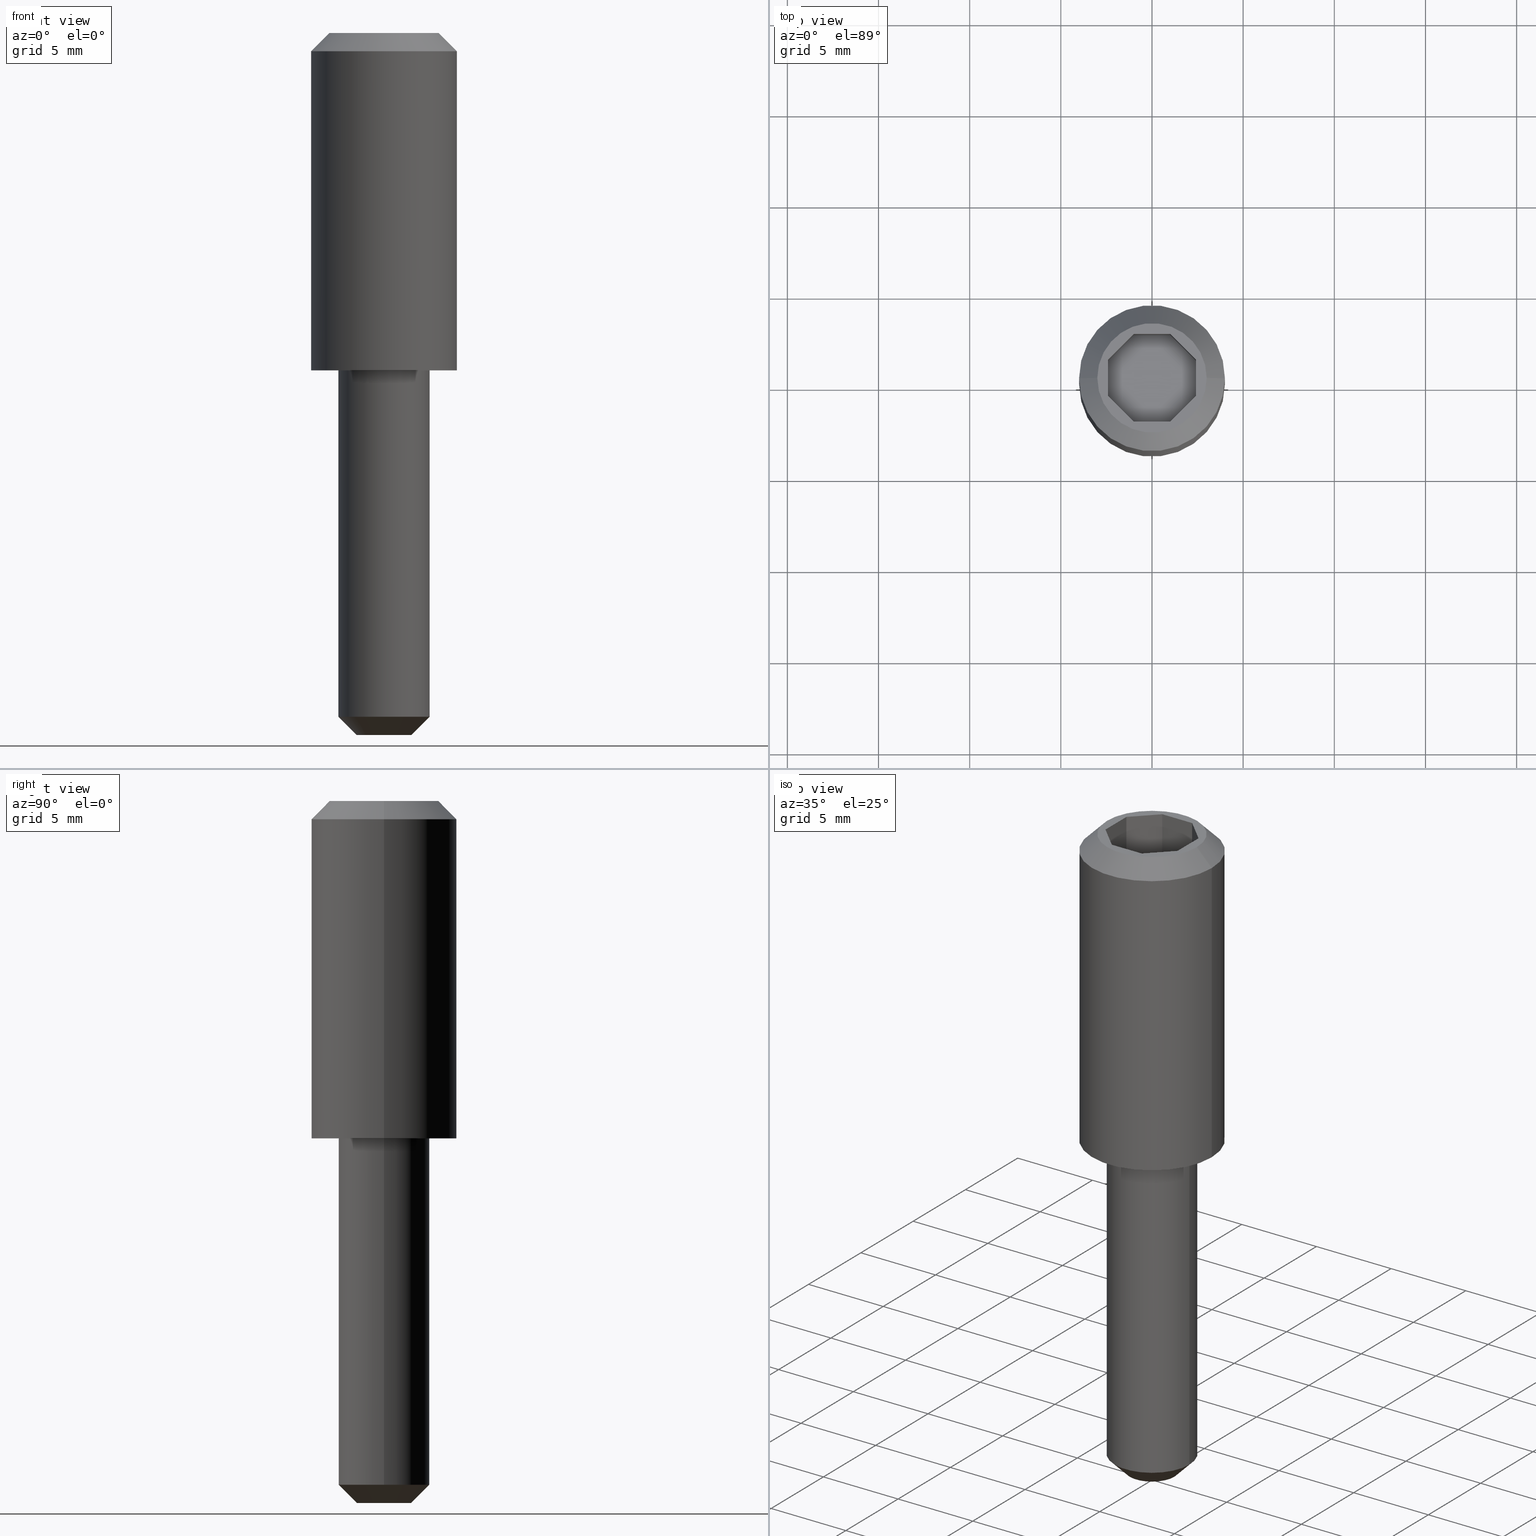
[diagram: canonical four-view strip — front | top / right | iso, engineering-drawing reading convention]
A machine part, canonical four-view strip (front | top / right | iso — engineering-drawing reading convention). The complete STEP part file that produces these views, byte-faithful:
ISO-10303-21;
HEADER;
/****************************************************************
 * Generated by software with PDE/Lib inside                    *
 * PDElib Version v4.4, created Mon 02/23/2004                  *
 * International Technegroup Inc. (www.iti-oh.com)              *
 ****************************************************************/
FILE_DESCRIPTION(('STEP AP203'),'2;1');
FILE_NAME('25.167.00.stp','2011-02-14T10:02:46',(''),(''),'2009.3.110','THINKDESIGN','');
FILE_SCHEMA(('CONFIG_CONTROL_DESIGN'));
ENDSEC;
DATA;
#2=CARTESIAN_POINT('',(0.0,-2.632991E-015,-21.500000000000007));
#3=CARTESIAN_POINT('',(0.0,-2.632991E-015,-21.500000000000007));
#4=CARTESIAN_POINT('',(0.0,-2.632991E-015,-21.500000000000007));
#5=CARTESIAN_POINT('',(0.0,-2.632991E-015,-21.500000000000007));
#6=CARTESIAN_POINT('',(0.0,-2.632991E-015,-21.500000000000007));
#7=CARTESIAN_POINT('',(0.0,-2.632991E-015,-21.500000000000007));
#8=CARTESIAN_POINT('',(0.0,-2.632991E-015,-21.500000000000007));
#9=CARTESIAN_POINT('',(0.0,-2.632991E-015,-21.500000000000007));
#10=CARTESIAN_POINT('',(0.0,-2.632991E-015,-21.500000000000007));
#11=CARTESIAN_POINT('',(0.0,2.625000000000001,-18.875000000000000));
#12=CARTESIAN_POINT('',(-2.625000000000000,2.625000000000001,-18.875000000000000));
#13=CARTESIAN_POINT('',(-2.625000000000000,-2.311521E-015,-18.875000000000000));
#14=CARTESIAN_POINT('',(-2.625000000000000,-2.625000000000006,-18.875000000000000));
#15=CARTESIAN_POINT('',(0.0,-2.625000000000006,-18.875000000000000));
#16=CARTESIAN_POINT('',(2.625000000000000,-2.625000000000006,-18.875000000000000));
#17=CARTESIAN_POINT('',(2.625000000000000,-2.311521E-015,-18.875000000000000));
#18=CARTESIAN_POINT('',(2.625000000000000,2.625000000000001,-18.875000000000000));
#19=CARTESIAN_POINT('',(0.0,2.625000000000001,-18.875000000000000));
#27=(BOUNDED_SURFACE()B_SPLINE_SURFACE(2,1,((#2,#11),(#3,#12),(#4,#13),(#5,#14),(#6,#15),(#7,#16),(#8,#17),(#9,#18),(#10,#19)),.UNSPECIFIED.,.T.,.F.,.U.)B_SPLINE_SURFACE_WITH_KNOTS((3,2,2,2,3),(2,2),(0.0,0.250000000000000,0.500000000000000,0.750000000000000,1.0),(0.0,1.0),.UNSPECIFIED.)GEOMETRIC_REPRESENTATION_ITEM()RATIONAL_B_SPLINE_SURFACE(((1.0,1.0),(0.707106781186548,0.707106781186548),(1.0,1.0),(0.707106781186548,0.707106781186548),(1.0,1.0),(0.707106781186548,0.707106781186548),(1.0,1.0),(0.707106781186548,0.707106781186548),(1.0,1.0)))REPRESENTATION_ITEM('')SURFACE());
#28=CARTESIAN_POINT('',(1.500000000000000,-2.449294E-015,-20.0));
#29=VERTEX_POINT('',#28);
#30=CARTESIAN_POINT('',(-1.500000000000000,-2.449294E-015,-20.0));
#31=VERTEX_POINT('',#30);
#32=CARTESIAN_POINT('',(0.0,-2.449294E-015,-20.0));
#33=DIRECTION('',(0.0,-1.224647E-016,-1.0));
#34=DIRECTION('',(-1.0,0.0,0.0));
#35=AXIS2_PLACEMENT_3D('',#32,#33,#34);
#36=CIRCLE('',#35,1.500000000000001);
#37=EDGE_CURVE('',#29,#31,#36,.T.);
#38=ORIENTED_EDGE('',*,*,#37,.F.);
#39=CARTESIAN_POINT('',(2.500000000000000,-2.326829E-015,-19.0));
#40=VERTEX_POINT('',#39);
#41=CARTESIAN_POINT('',(1.500000000000000,-2.449294E-015,-20.0));
#42=DIRECTION('',(0.707106781186547,8.659561E-017,0.707106781186547));
#43=VECTOR('',#42,1.414213562373095);
#44=LINE('',#41,#43);
#45=EDGE_CURVE('',#29,#40,#44,.T.);
#46=ORIENTED_EDGE('',*,*,#45,.T.);
#47=CARTESIAN_POINT('',(-2.500000000000000,-2.326829E-015,-19.0));
#48=VERTEX_POINT('',#47);
#49=CARTESIAN_POINT('',(0.0,-2.326829E-015,-19.0));
#50=DIRECTION('',(0.0,1.224647E-016,1.0));
#51=DIRECTION('',(-1.0,0.0,0.0));
#52=AXIS2_PLACEMENT_3D('',#49,#50,#51);
#53=CIRCLE('',#52,2.500000000000003);
#54=EDGE_CURVE('',#48,#40,#53,.T.);
#55=ORIENTED_EDGE('',*,*,#54,.F.);
#56=CARTESIAN_POINT('',(-1.500000000000000,-2.449294E-015,-20.0));
#57=DIRECTION('',(-0.707106781186547,8.659561E-017,0.707106781186547));
#58=VECTOR('',#57,1.414213562373095);
#59=LINE('',#56,#58);
#60=EDGE_CURVE('',#31,#48,#59,.T.);
#61=ORIENTED_EDGE('',*,*,#60,.F.);
#62=EDGE_LOOP('',(#38,#46,#55,#61));
#63=FACE_OUTER_BOUND('',#62,.T.);
#64=ADVANCED_FACE('',(#63),#27,.T.);
#65=CARTESIAN_POINT('',(0.0,2.632991E-015,21.500000000000014));
#66=CARTESIAN_POINT('',(0.0,2.632991E-015,21.500000000000014));
#67=CARTESIAN_POINT('',(0.0,2.632991E-015,21.500000000000014));
#68=CARTESIAN_POINT('',(0.0,2.632991E-015,21.500000000000014));
#69=CARTESIAN_POINT('',(0.0,2.632991E-015,21.500000000000014));
#70=CARTESIAN_POINT('',(0.0,2.632991E-015,21.500000000000014));
#71=CARTESIAN_POINT('',(0.0,2.632991E-015,21.500000000000014));
#72=CARTESIAN_POINT('',(0.0,2.632991E-015,21.500000000000014));
#73=CARTESIAN_POINT('',(0.0,2.632991E-015,21.500000000000014));
#74=CARTESIAN_POINT('',(0.0,4.200000000000019,17.299999999999983));
#75=CARTESIAN_POINT('',(4.200000000000017,4.200000000000019,17.299999999999983));
#76=CARTESIAN_POINT('',(4.200000000000017,2.118639E-015,17.299999999999983));
#77=CARTESIAN_POINT('',(4.200000000000017,-4.200000000000015,17.299999999999983));
#78=CARTESIAN_POINT('',(0.0,-4.200000000000015,17.299999999999983));
#79=CARTESIAN_POINT('',(-4.200000000000024,-4.200000000000015,17.299999999999983));
#80=CARTESIAN_POINT('',(-4.200000000000017,2.118639E-015,17.299999999999983));
#81=CARTESIAN_POINT('',(-4.200000000000024,4.200000000000019,17.299999999999983));
#82=CARTESIAN_POINT('',(0.0,4.200000000000019,17.299999999999983));
#90=(BOUNDED_SURFACE()B_SPLINE_SURFACE(2,1,((#65,#74),(#66,#75),(#67,#76),(#68,#77),(#69,#78),(#70,#79),(#71,#80),(#72,#81),(#73,#82)),.UNSPECIFIED.,.T.,.F.,.U.)B_SPLINE_SURFACE_WITH_KNOTS((3,2,2,2,3),(2,2),(0.0,0.250000000000000,0.500000000000000,0.750000000000000,1.0),(0.0,1.0),.UNSPECIFIED.)GEOMETRIC_REPRESENTATION_ITEM()RATIONAL_B_SPLINE_SURFACE(((1.0,1.0),(0.707106781186548,0.707106781186548),(1.0,1.0),(0.707106781186548,0.707106781186548),(1.0,1.0),(0.707106781186548,0.707106781186548),(1.0,1.0),(0.707106781186548,0.707106781186548),(1.0,1.0)))REPRESENTATION_ITEM('')SURFACE());
#91=CARTESIAN_POINT('',(-3.000000000000007,2.265597E-015,18.500000000000000));
#92=VERTEX_POINT('',#91);
#93=CARTESIAN_POINT('',(3.0,2.265597E-015,18.500000000000000));
#94=VERTEX_POINT('',#93);
#95=CARTESIAN_POINT('',(0.0,2.265597E-015,18.500000000000000));
#96=DIRECTION('',(0.0,1.224647E-016,1.0));
#97=DIRECTION('',(-1.0,0.0,0.0));
#98=AXIS2_PLACEMENT_3D('',#95,#96,#97);
#99=CIRCLE('',#98,3.000000000000002);
#100=EDGE_CURVE('',#92,#94,#99,.T.);
#101=ORIENTED_EDGE('',*,*,#100,.F.);
#102=CARTESIAN_POINT('',(-4.000000000000007,2.143132E-015,17.500000000000000));
#103=VERTEX_POINT('',#102);
#104=CARTESIAN_POINT('',(-3.000000000000007,2.265597E-015,18.500000000000000));
#105=DIRECTION('',(-0.707106781186546,-8.659561E-017,-0.707106781186549));
#106=VECTOR('',#105,1.414213562373098);
#107=LINE('',#104,#106);
#108=EDGE_CURVE('',#92,#103,#107,.T.);
#109=ORIENTED_EDGE('',*,*,#108,.T.);
#110=CARTESIAN_POINT('',(4.000000000000028,2.143132E-015,17.500000000000000));
#111=VERTEX_POINT('',#110);
#112=CARTESIAN_POINT('',(0.0,2.143132E-015,17.500000000000000));
#113=DIRECTION('',(0.0,-1.224647E-016,-1.0));
#114=DIRECTION('',(-1.0,0.0,0.0));
#115=AXIS2_PLACEMENT_3D('',#112,#113,#114);
#116=CIRCLE('',#115,4.000000000000004);
#117=EDGE_CURVE('',#111,#103,#116,.T.);
#118=ORIENTED_EDGE('',*,*,#117,.F.);
#119=CARTESIAN_POINT('',(3.0,2.265597E-015,18.500000000000000));
#120=DIRECTION('',(0.707106781186546,-8.659561E-017,-0.707106781186549));
#121=VECTOR('',#120,1.414213562373118);
#122=LINE('',#119,#121);
#123=EDGE_CURVE('',#94,#111,#122,.T.);
#124=ORIENTED_EDGE('',*,*,#123,.F.);
#125=EDGE_LOOP('',(#101,#109,#118,#124));
#126=FACE_OUTER_BOUND('',#125,.T.);
#127=ADVANCED_FACE('',(#126),#90,.T.);
#128=CARTESIAN_POINT('',(0.0,-2.326829E-015,-19.000000010000001));
#129=DIRECTION('',(0.0,1.224647E-016,1.0));
#130=DIRECTION('',(0.0,1.0,-1.224647E-016));
#131=AXIS2_PLACEMENT_3D('',#128,#129,#130);
#132=CYLINDRICAL_SURFACE('',#131,2.500000000000003);
#133=ORIENTED_EDGE('',*,*,#54,.T.);
#134=CARTESIAN_POINT('',(2.500000000000000,0.0,0.0));
#135=VERTEX_POINT('',#134);
#136=CARTESIAN_POINT('',(2.500000000000000,-2.326829E-015,-19.0));
#137=DIRECTION('',(0.0,0.0,1.0));
#138=VECTOR('',#137,19.0);
#139=LINE('',#136,#138);
#140=EDGE_CURVE('',#40,#135,#139,.T.);
#141=ORIENTED_EDGE('',*,*,#140,.T.);
#142=CARTESIAN_POINT('',(-2.500000000000000,0.0,0.0));
#143=VERTEX_POINT('',#142);
#144=CARTESIAN_POINT('',(0.0,0.0,0.0));
#145=DIRECTION('',(0.0,1.224647E-016,1.0));
#146=DIRECTION('',(0.0,-1.0,1.224647E-016));
#147=AXIS2_PLACEMENT_3D('',#144,#145,#146);
#148=CIRCLE('',#147,2.499999999999999);
#149=EDGE_CURVE('',#143,#135,#148,.T.);
#150=ORIENTED_EDGE('',*,*,#149,.F.);
#151=CARTESIAN_POINT('',(-2.500000000000000,-2.326829E-015,-19.0));
#152=DIRECTION('',(0.0,0.0,1.0));
#153=VECTOR('',#152,19.0);
#154=LINE('',#151,#153);
#155=EDGE_CURVE('',#48,#143,#154,.T.);
#156=ORIENTED_EDGE('',*,*,#155,.F.);
#157=EDGE_LOOP('',(#133,#141,#150,#156));
#158=FACE_OUTER_BOUND('',#157,.T.);
#159=ADVANCED_FACE('',(#158),#132,.T.);
#160=CARTESIAN_POINT('',(0.0,-1.224647E-024,-1.000000E-008));
#161=DIRECTION('',(0.0,1.224647E-016,1.0));
#162=DIRECTION('',(0.0,1.0,-1.224647E-016));
#163=AXIS2_PLACEMENT_3D('',#160,#161,#162);
#164=CYLINDRICAL_SURFACE('',#163,4.000000000000004);
#165=CARTESIAN_POINT('',(-4.000000000000007,0.0,0.0));
#166=VERTEX_POINT('',#165);
#167=CARTESIAN_POINT('',(4.000000000000028,0.0,0.0));
#168=VERTEX_POINT('',#167);
#169=CARTESIAN_POINT('',(0.0,0.0,0.0));
#170=DIRECTION('',(0.0,1.224647E-016,1.0));
#171=DIRECTION('',(1.0,0.0,0.0));
#172=AXIS2_PLACEMENT_3D('',#169,#170,#171);
#173=CIRCLE('',#172,4.000000000000004);
#174=EDGE_CURVE('',#166,#168,#173,.T.);
#175=ORIENTED_EDGE('',*,*,#174,.T.);
#176=CARTESIAN_POINT('',(4.000000000000028,0.0,0.0));
#177=DIRECTION('',(0.0,0.0,1.0));
#178=VECTOR('',#177,17.500000000000000);
#179=LINE('',#176,#178);
#180=EDGE_CURVE('',#168,#111,#179,.T.);
#181=ORIENTED_EDGE('',*,*,#180,.T.);
#182=ORIENTED_EDGE('',*,*,#117,.T.);
#183=CARTESIAN_POINT('',(-4.000000000000007,0.0,0.0));
#184=DIRECTION('',(0.0,0.0,1.0));
#185=VECTOR('',#184,17.500000000000000);
#186=LINE('',#183,#185);
#187=EDGE_CURVE('',#166,#103,#186,.T.);
#188=ORIENTED_EDGE('',*,*,#187,.F.);
#189=EDGE_LOOP('',(#175,#181,#182,#188));
#190=FACE_OUTER_BOUND('',#189,.T.);
#191=ADVANCED_FACE('',(#190),#164,.T.);
#192=CARTESIAN_POINT('',(3.299999999999997,3.300000000000007,18.500000000000000));
#193=DIRECTION('',(0.0,0.0,1.0));
#194=DIRECTION('',(-1.0,0.0,0.0));
#195=AXIS2_PLACEMENT_3D('',#192,#193,#194);
#196=PLANE('',#195);
#197=CARTESIAN_POINT('',(0.0,2.265597E-015,18.500000000000000));
#198=DIRECTION('',(0.0,1.224647E-016,1.0));
#199=DIRECTION('',(-1.0,0.0,0.0));
#200=AXIS2_PLACEMENT_3D('',#197,#198,#199);
#201=CIRCLE('',#200,3.000000000000002);
#202=EDGE_CURVE('',#94,#92,#201,.T.);
#203=ORIENTED_EDGE('',*,*,#202,.T.);
#204=ORIENTED_EDGE('',*,*,#100,.T.);
#205=EDGE_LOOP('',(#203,#204));
#206=FACE_OUTER_BOUND('',#205,.T.);
#207=CARTESIAN_POINT('',(2.414213562373107,-0.999999999999998,18.500000000000000));
#208=VERTEX_POINT('',#207);
#209=CARTESIAN_POINT('',(1.0,-2.414213562373083,18.500000000000000));
#210=VERTEX_POINT('',#209);
#211=CARTESIAN_POINT('',(2.414213562373099,-0.999999999999991,18.500000000000000));
#212=DIRECTION('',(-0.707106781186548,-0.707106781186547,0.0));
#213=VECTOR('',#212,2.000000000000004);
#214=LINE('',#211,#213);
#215=EDGE_CURVE('',#208,#210,#214,.T.);
#216=ORIENTED_EDGE('',*,*,#215,.T.);
#217=CARTESIAN_POINT('',(-1.0,-2.414213562373094,18.500000000000000));
#218=VERTEX_POINT('',#217);
#219=CARTESIAN_POINT('',(1.0,-2.414213562373094,18.500000000000000));
#220=DIRECTION('',(-1.0,0.0,0.0));
#221=VECTOR('',#220,2.0);
#222=LINE('',#219,#221);
#223=EDGE_CURVE('',#210,#218,#222,.T.);
#224=ORIENTED_EDGE('',*,*,#223,.T.);
#225=CARTESIAN_POINT('',(-2.414213562373107,-0.999999999999998,18.500000000000000));
#226=VERTEX_POINT('',#225);
#227=CARTESIAN_POINT('',(-1.0,-2.414213562373094,18.500000000000000));
#228=DIRECTION('',(-0.707106781186547,0.707106781186548,0.0));
#229=VECTOR('',#228,2.000000000000008);
#230=LINE('',#227,#229);
#231=EDGE_CURVE('',#218,#226,#230,.T.);
#232=ORIENTED_EDGE('',*,*,#231,.T.);
#233=CARTESIAN_POINT('',(-2.414213562373107,1.000000000000002,18.500000000000000));
#234=VERTEX_POINT('',#233);
#235=CARTESIAN_POINT('',(-2.414213562373107,-0.999999999999998,18.500000000000000));
#236=DIRECTION('',(0.0,1.0,0.0));
#237=VECTOR('',#236,2.0);
#238=LINE('',#235,#237);
#239=EDGE_CURVE('',#226,#234,#238,.T.);
#240=ORIENTED_EDGE('',*,*,#239,.T.);
#241=CARTESIAN_POINT('',(-1.0,2.414213562373098,18.500000000000000));
#242=VERTEX_POINT('',#241);
#243=CARTESIAN_POINT('',(-2.414213562373099,0.999999999999995,18.500000000000000));
#244=DIRECTION('',(0.707106781186548,0.707106781186547,0.0));
#245=VECTOR('',#244,2.000000000000006);
#246=LINE('',#243,#245);
#247=EDGE_CURVE('',#234,#242,#246,.T.);
#248=ORIENTED_EDGE('',*,*,#247,.T.);
#249=CARTESIAN_POINT('',(1.0,2.414213562373098,18.500000000000000));
#250=VERTEX_POINT('',#249);
#251=CARTESIAN_POINT('',(-1.0,2.414213562373098,18.500000000000000));
#252=DIRECTION('',(1.0,0.0,0.0));
#253=VECTOR('',#252,2.0);
#254=LINE('',#251,#253);
#255=EDGE_CURVE('',#242,#250,#254,.T.);
#256=ORIENTED_EDGE('',*,*,#255,.T.);
#257=CARTESIAN_POINT('',(2.414213562373107,1.000000000000002,18.500000000000000));
#258=VERTEX_POINT('',#257);
#259=CARTESIAN_POINT('',(1.000000000000007,2.414213562373102,18.500000000000000));
#260=DIRECTION('',(0.707106781186548,-0.707106781186548,0.0));
#261=VECTOR('',#260,2.000000000000006);
#262=LINE('',#259,#261);
#263=EDGE_CURVE('',#250,#258,#262,.T.);
#264=ORIENTED_EDGE('',*,*,#263,.T.);
#265=CARTESIAN_POINT('',(2.414213562373107,1.000000000000002,18.500000000000000));
#266=DIRECTION('',(0.0,-1.0,0.0));
#267=VECTOR('',#266,2.0);
#268=LINE('',#265,#267);
#269=EDGE_CURVE('',#258,#208,#268,.T.);
#270=ORIENTED_EDGE('',*,*,#269,.T.);
#271=EDGE_LOOP('',(#216,#224,#232,#240,#248,#256,#264,#270));
#272=FACE_BOUND('',#271,.T.);
#273=ADVANCED_FACE('',(#206,#272),#196,.T.);
#274=CARTESIAN_POINT('',(0.0,-1.224647E-024,-1.000000E-008));
#275=DIRECTION('',(0.0,1.224647E-016,1.0));
#276=DIRECTION('',(0.0,-1.0,1.224647E-016));
#277=AXIS2_PLACEMENT_3D('',#274,#275,#276);
#278=CYLINDRICAL_SURFACE('',#277,4.000000000000004);
#279=ORIENTED_EDGE('',*,*,#180,.F.);
#280=CARTESIAN_POINT('',(0.0,0.0,0.0));
#281=DIRECTION('',(0.0,1.224647E-016,1.0));
#282=DIRECTION('',(1.0,0.0,0.0));
#283=AXIS2_PLACEMENT_3D('',#280,#281,#282);
#284=CIRCLE('',#283,4.000000000000004);
#285=EDGE_CURVE('',#168,#166,#284,.T.);
#286=ORIENTED_EDGE('',*,*,#285,.T.);
#287=ORIENTED_EDGE('',*,*,#187,.T.);
#288=CARTESIAN_POINT('',(0.0,2.143132E-015,17.500000000000000));
#289=DIRECTION('',(0.0,-1.224647E-016,-1.0));
#290=DIRECTION('',(-1.0,0.0,0.0));
#291=AXIS2_PLACEMENT_3D('',#288,#289,#290);
#292=CIRCLE('',#291,4.000000000000004);
#293=EDGE_CURVE('',#103,#111,#292,.T.);
#294=ORIENTED_EDGE('',*,*,#293,.T.);
#295=EDGE_LOOP('',(#279,#286,#287,#294));
#296=FACE_OUTER_BOUND('',#295,.T.);
#297=ADVANCED_FACE('',(#296),#278,.T.);
#298=CARTESIAN_POINT('',(4.400000000000034,4.400000000000006,-5.388446E-016));
#299=DIRECTION('',(0.0,0.0,1.0));
#300=DIRECTION('',(-1.0,0.0,0.0));
#301=AXIS2_PLACEMENT_3D('',#298,#299,#300);
#302=PLANE('',#301);
#303=ORIENTED_EDGE('',*,*,#174,.F.);
#304=ORIENTED_EDGE('',*,*,#285,.F.);
#305=EDGE_LOOP('',(#303,#304));
#306=FACE_OUTER_BOUND('',#305,.T.);
#307=ORIENTED_EDGE('',*,*,#149,.T.);
#308=CARTESIAN_POINT('',(0.0,0.0,0.0));
#309=DIRECTION('',(0.0,1.224647E-016,1.0));
#310=DIRECTION('',(0.0,-1.0,1.224647E-016));
#311=AXIS2_PLACEMENT_3D('',#308,#309,#310);
#312=CIRCLE('',#311,2.499999999999999);
#313=EDGE_CURVE('',#135,#143,#312,.T.);
#314=ORIENTED_EDGE('',*,*,#313,.T.);
#315=EDGE_LOOP('',(#307,#314));
#316=FACE_BOUND('',#315,.T.);
#317=ADVANCED_FACE('',(#306,#316),#302,.F.);
#318=CARTESIAN_POINT('',(0.0,-2.326829E-015,-19.000000010000001));
#319=DIRECTION('',(0.0,1.224647E-016,1.0));
#320=DIRECTION('',(0.0,-1.0,1.224647E-016));
#321=AXIS2_PLACEMENT_3D('',#318,#319,#320);
#322=CYLINDRICAL_SURFACE('',#321,2.500000000000003);
#323=ORIENTED_EDGE('',*,*,#140,.F.);
#324=CARTESIAN_POINT('',(0.0,-2.326829E-015,-19.0));
#325=DIRECTION('',(0.0,1.224647E-016,1.0));
#326=DIRECTION('',(-1.0,0.0,0.0));
#327=AXIS2_PLACEMENT_3D('',#324,#325,#326);
#328=CIRCLE('',#327,2.500000000000003);
#329=EDGE_CURVE('',#40,#48,#328,.T.);
#330=ORIENTED_EDGE('',*,*,#329,.T.);
#331=ORIENTED_EDGE('',*,*,#155,.T.);
#332=ORIENTED_EDGE('',*,*,#313,.F.);
#333=EDGE_LOOP('',(#323,#330,#331,#332));
#334=FACE_OUTER_BOUND('',#333,.T.);
#335=ADVANCED_FACE('',(#334),#322,.T.);
#336=CARTESIAN_POINT('',(1.649999999999999,1.649999999999996,-20.0));
#337=DIRECTION('',(0.0,0.0,1.0));
#338=DIRECTION('',(-1.0,0.0,0.0));
#339=AXIS2_PLACEMENT_3D('',#336,#337,#338);
#340=PLANE('',#339);
#341=CARTESIAN_POINT('',(0.0,-2.449294E-015,-20.0));
#342=DIRECTION('',(0.0,-1.224647E-016,-1.0));
#343=DIRECTION('',(-1.0,0.0,0.0));
#344=AXIS2_PLACEMENT_3D('',#341,#342,#343);
#345=CIRCLE('',#344,1.500000000000001);
#346=EDGE_CURVE('',#31,#29,#345,.T.);
#347=ORIENTED_EDGE('',*,*,#346,.T.);
#348=ORIENTED_EDGE('',*,*,#37,.T.);
#349=EDGE_LOOP('',(#347,#348));
#350=FACE_OUTER_BOUND('',#349,.T.);
#351=ADVANCED_FACE('',(#350),#340,.F.);
#352=CARTESIAN_POINT('',(0.0,2.632991E-015,21.500000000000014));
#353=CARTESIAN_POINT('',(0.0,2.632991E-015,21.500000000000014));
#354=CARTESIAN_POINT('',(0.0,2.632991E-015,21.500000000000014));
#355=CARTESIAN_POINT('',(0.0,2.632991E-015,21.500000000000014));
#356=CARTESIAN_POINT('',(0.0,2.632991E-015,21.500000000000014));
#357=CARTESIAN_POINT('',(0.0,2.632991E-015,21.500000000000014));
#358=CARTESIAN_POINT('',(0.0,2.632991E-015,21.500000000000014));
#359=CARTESIAN_POINT('',(0.0,2.632991E-015,21.500000000000014));
#360=CARTESIAN_POINT('',(0.0,2.632991E-015,21.500000000000014));
#361=CARTESIAN_POINT('',(0.0,-4.200000000000015,17.299999999999983));
#362=CARTESIAN_POINT('',(-4.200000000000024,-4.200000000000015,17.299999999999983));
#363=CARTESIAN_POINT('',(-4.200000000000017,2.118639E-015,17.299999999999983));
#364=CARTESIAN_POINT('',(-4.200000000000024,4.200000000000019,17.299999999999983));
#365=CARTESIAN_POINT('',(0.0,4.200000000000019,17.299999999999983));
#366=CARTESIAN_POINT('',(4.200000000000017,4.200000000000019,17.299999999999983));
#367=CARTESIAN_POINT('',(4.200000000000017,2.118639E-015,17.299999999999983));
#368=CARTESIAN_POINT('',(4.200000000000017,-4.200000000000015,17.299999999999983));
#369=CARTESIAN_POINT('',(0.0,-4.200000000000015,17.299999999999983));
#377=(BOUNDED_SURFACE()B_SPLINE_SURFACE(2,1,((#352,#361),(#353,#362),(#354,#363),(#355,#364),(#356,#365),(#357,#366),(#358,#367),(#359,#368),(#360,#369)),.UNSPECIFIED.,.T.,.F.,.U.)B_SPLINE_SURFACE_WITH_KNOTS((3,2,2,2,3),(2,2),(0.0,0.250000000000000,0.500000000000000,0.750000000000000,1.0),(0.0,1.0),.UNSPECIFIED.)GEOMETRIC_REPRESENTATION_ITEM()RATIONAL_B_SPLINE_SURFACE(((1.0,1.0),(0.707106781186548,0.707106781186548),(1.0,1.0),(0.707106781186548,0.707106781186548),(1.0,1.0),(0.707106781186548,0.707106781186548),(1.0,1.0),(0.707106781186548,0.707106781186548),(1.0,1.0)))REPRESENTATION_ITEM('')SURFACE());
#378=ORIENTED_EDGE('',*,*,#108,.F.);
#379=ORIENTED_EDGE('',*,*,#202,.F.);
#380=ORIENTED_EDGE('',*,*,#123,.T.);
#381=ORIENTED_EDGE('',*,*,#293,.F.);
#382=EDGE_LOOP('',(#378,#379,#380,#381));
#383=FACE_OUTER_BOUND('',#382,.T.);
#384=ADVANCED_FACE('',(#383),#377,.T.);
#385=CARTESIAN_POINT('',(0.0,-2.632991E-015,-21.500000000000007));
#386=CARTESIAN_POINT('',(0.0,-2.632991E-015,-21.500000000000007));
#387=CARTESIAN_POINT('',(0.0,-2.632991E-015,-21.500000000000007));
#388=CARTESIAN_POINT('',(0.0,-2.632991E-015,-21.500000000000007));
#389=CARTESIAN_POINT('',(0.0,-2.632991E-015,-21.500000000000007));
#390=CARTESIAN_POINT('',(0.0,-2.632991E-015,-21.500000000000007));
#391=CARTESIAN_POINT('',(0.0,-2.632991E-015,-21.500000000000007));
#392=CARTESIAN_POINT('',(0.0,-2.632991E-015,-21.500000000000007));
#393=CARTESIAN_POINT('',(0.0,-2.632991E-015,-21.500000000000007));
#394=CARTESIAN_POINT('',(0.0,-2.625000000000006,-18.875000000000000));
#395=CARTESIAN_POINT('',(2.625000000000000,-2.625000000000006,-18.875000000000000));
#396=CARTESIAN_POINT('',(2.625000000000000,-2.311521E-015,-18.875000000000000));
#397=CARTESIAN_POINT('',(2.625000000000000,2.625000000000001,-18.875000000000000));
#398=CARTESIAN_POINT('',(0.0,2.625000000000001,-18.875000000000000));
#399=CARTESIAN_POINT('',(-2.625000000000000,2.625000000000001,-18.875000000000000));
#400=CARTESIAN_POINT('',(-2.625000000000000,-2.311521E-015,-18.875000000000000));
#401=CARTESIAN_POINT('',(-2.625000000000000,-2.625000000000006,-18.875000000000000));
#402=CARTESIAN_POINT('',(0.0,-2.625000000000006,-18.875000000000000));
#410=(BOUNDED_SURFACE()B_SPLINE_SURFACE(2,1,((#385,#394),(#386,#395),(#387,#396),(#388,#397),(#389,#398),(#390,#399),(#391,#400),(#392,#401),(#393,#402)),.UNSPECIFIED.,.T.,.F.,.U.)B_SPLINE_SURFACE_WITH_KNOTS((3,2,2,2,3),(2,2),(0.0,0.250000000000000,0.500000000000000,0.750000000000000,1.0),(0.0,1.0),.UNSPECIFIED.)GEOMETRIC_REPRESENTATION_ITEM()RATIONAL_B_SPLINE_SURFACE(((1.0,1.0),(0.707106781186548,0.707106781186548),(1.0,1.0),(0.707106781186548,0.707106781186548),(1.0,1.0),(0.707106781186548,0.707106781186548),(1.0,1.0),(0.707106781186548,0.707106781186548),(1.0,1.0)))REPRESENTATION_ITEM('')SURFACE());
#411=ORIENTED_EDGE('',*,*,#45,.F.);
#412=ORIENTED_EDGE('',*,*,#346,.F.);
#413=ORIENTED_EDGE('',*,*,#60,.T.);
#414=ORIENTED_EDGE('',*,*,#329,.F.);
#415=EDGE_LOOP('',(#411,#412,#413,#414));
#416=FACE_OUTER_BOUND('',#415,.T.);
#417=ADVANCED_FACE('',(#416),#410,.T.);
#418=CARTESIAN_POINT('',(-1.100000000000001,-2.414213562373094,15.350000000000000));
#419=DIRECTION('',(0.0,1.0,0.0));
#420=DIRECTION('',(0.0,0.0,1.0));
#421=AXIS2_PLACEMENT_3D('',#418,#419,#420);
#422=PLANE('',#421);
#423=ORIENTED_EDGE('',*,*,#223,.F.);
#424=CARTESIAN_POINT('',(1.0,-2.414213562373094,15.500000000000000));
#425=VERTEX_POINT('',#424);
#426=CARTESIAN_POINT('',(1.0,-2.414213562373094,15.500000000000000));
#427=DIRECTION('',(0.0,0.0,1.0));
#428=VECTOR('',#427,3.0);
#429=LINE('',#426,#428);
#430=EDGE_CURVE('',#425,#210,#429,.T.);
#431=ORIENTED_EDGE('',*,*,#430,.F.);
#432=CARTESIAN_POINT('',(-1.0,-2.414213562373094,15.500000000000000));
#433=VERTEX_POINT('',#432);
#434=CARTESIAN_POINT('',(1.0,-2.414213562373094,15.500000000000000));
#435=DIRECTION('',(-1.0,0.0,0.0));
#436=VECTOR('',#435,2.0);
#437=LINE('',#434,#436);
#438=EDGE_CURVE('',#425,#433,#437,.T.);
#439=ORIENTED_EDGE('',*,*,#438,.T.);
#440=CARTESIAN_POINT('',(-1.0,-2.414213562373094,15.500000000000000));
#441=DIRECTION('',(0.0,0.0,1.0));
#442=VECTOR('',#441,3.0);
#443=LINE('',#440,#442);
#444=EDGE_CURVE('',#433,#218,#443,.T.);
#445=ORIENTED_EDGE('',*,*,#444,.T.);
#446=EDGE_LOOP('',(#423,#431,#439,#445));
#447=FACE_OUTER_BOUND('',#446,.T.);
#448=ADVANCED_FACE('',(#447),#422,.T.);
#449=CARTESIAN_POINT('',(-2.484924240491758,-0.929289321881336,18.649999999999999));
#450=DIRECTION('',(0.707106781186548,0.707106781186547,-8.659561E-017));
#451=DIRECTION('',(0.707106781186547,-0.707106781186548,8.659561E-017));
#452=AXIS2_PLACEMENT_3D('',#449,#450,#451);
#453=PLANE('',#452);
#454=ORIENTED_EDGE('',*,*,#231,.F.);
#455=ORIENTED_EDGE('',*,*,#444,.F.);
#456=CARTESIAN_POINT('',(-2.414213562373107,-0.999999999999998,15.500000000000000));
#457=VERTEX_POINT('',#456);
#458=CARTESIAN_POINT('',(-1.0,-2.414213562373094,15.500000000000000));
#459=DIRECTION('',(-0.707106781186547,0.707106781186548,0.0));
#460=VECTOR('',#459,2.000000000000008);
#461=LINE('',#458,#460);
#462=EDGE_CURVE('',#433,#457,#461,.T.);
#463=ORIENTED_EDGE('',*,*,#462,.T.);
#464=CARTESIAN_POINT('',(-2.414213562373107,-0.999999999999998,15.500000000000000));
#465=DIRECTION('',(0.0,0.0,1.0));
#466=VECTOR('',#465,3.0);
#467=LINE('',#464,#466);
#468=EDGE_CURVE('',#457,#226,#467,.T.);
#469=ORIENTED_EDGE('',*,*,#468,.T.);
#470=EDGE_LOOP('',(#454,#455,#463,#469));
#471=FACE_OUTER_BOUND('',#470,.T.);
#472=ADVANCED_FACE('',(#471),#453,.T.);
#473=CARTESIAN_POINT('',(-2.414213562373107,1.100000000000004,18.649999999999999));
#474=DIRECTION('',(1.0,0.0,0.0));
#475=DIRECTION('',(0.0,-1.0,0.0));
#476=AXIS2_PLACEMENT_3D('',#473,#474,#475);
#477=PLANE('',#476);
#478=ORIENTED_EDGE('',*,*,#239,.F.);
#479=ORIENTED_EDGE('',*,*,#468,.F.);
#480=CARTESIAN_POINT('',(-2.414213562373107,1.000000000000002,15.500000000000000));
#481=VERTEX_POINT('',#480);
#482=CARTESIAN_POINT('',(-2.414213562373107,-0.999999999999998,15.500000000000000));
#483=DIRECTION('',(0.0,1.0,0.0));
#484=VECTOR('',#483,2.0);
#485=LINE('',#482,#484);
#486=EDGE_CURVE('',#457,#481,#485,.T.);
#487=ORIENTED_EDGE('',*,*,#486,.T.);
#488=CARTESIAN_POINT('',(-2.414213562373107,1.000000000000002,15.500000000000000));
#489=DIRECTION('',(0.0,0.0,1.0));
#490=VECTOR('',#489,3.0);
#491=LINE('',#488,#490);
#492=EDGE_CURVE('',#481,#234,#491,.T.);
#493=ORIENTED_EDGE('',*,*,#492,.T.);
#494=EDGE_LOOP('',(#478,#479,#487,#493));
#495=FACE_OUTER_BOUND('',#494,.T.);
#496=ADVANCED_FACE('',(#495),#477,.T.);
#497=CARTESIAN_POINT('',(-0.929289321881335,2.484924240491760,18.649999999999999));
#498=DIRECTION('',(0.707106781186547,-0.707106781186548,8.659561E-017));
#499=DIRECTION('',(-0.707106781186548,-0.707106781186547,8.659561E-017));
#500=AXIS2_PLACEMENT_3D('',#497,#498,#499);
#501=PLANE('',#500);
#502=ORIENTED_EDGE('',*,*,#247,.F.);
#503=ORIENTED_EDGE('',*,*,#492,.F.);
#504=CARTESIAN_POINT('',(-1.0,2.414213562373098,15.500000000000000));
#505=VERTEX_POINT('',#504);
#506=CARTESIAN_POINT('',(-2.414213562373099,0.999999999999995,15.500000000000000));
#507=DIRECTION('',(0.707106781186548,0.707106781186548,0.0));
#508=VECTOR('',#507,2.000000000000006);
#509=LINE('',#506,#508);
#510=EDGE_CURVE('',#481,#505,#509,.T.);
#511=ORIENTED_EDGE('',*,*,#510,.T.);
#512=CARTESIAN_POINT('',(-1.0,2.414213562373098,15.500000000000000));
#513=DIRECTION('',(0.0,0.0,1.0));
#514=VECTOR('',#513,3.0);
#515=LINE('',#512,#514);
#516=EDGE_CURVE('',#505,#242,#515,.T.);
#517=ORIENTED_EDGE('',*,*,#516,.T.);
#518=EDGE_LOOP('',(#502,#503,#511,#517));
#519=FACE_OUTER_BOUND('',#518,.T.);
#520=ADVANCED_FACE('',(#519),#501,.T.);
#521=CARTESIAN_POINT('',(1.100000000000001,2.414213562373098,18.649999999999999));
#522=DIRECTION('',(0.0,-1.0,0.0));
#523=DIRECTION('',(-1.0,0.0,0.0));
#524=AXIS2_PLACEMENT_3D('',#521,#522,#523);
#525=PLANE('',#524);
#526=ORIENTED_EDGE('',*,*,#255,.F.);
#527=ORIENTED_EDGE('',*,*,#516,.F.);
#528=CARTESIAN_POINT('',(1.0,2.414213562373098,15.500000000000000));
#529=VERTEX_POINT('',#528);
#530=CARTESIAN_POINT('',(-1.0,2.414213562373098,15.500000000000000));
#531=DIRECTION('',(1.0,0.0,0.0));
#532=VECTOR('',#531,2.0);
#533=LINE('',#530,#532);
#534=EDGE_CURVE('',#505,#529,#533,.T.);
#535=ORIENTED_EDGE('',*,*,#534,.T.);
#536=CARTESIAN_POINT('',(1.0,2.414213562373098,15.500000000000000));
#537=DIRECTION('',(0.0,0.0,1.0));
#538=VECTOR('',#537,3.0);
#539=LINE('',#536,#538);
#540=EDGE_CURVE('',#529,#250,#539,.T.);
#541=ORIENTED_EDGE('',*,*,#540,.T.);
#542=EDGE_LOOP('',(#526,#527,#535,#541));
#543=FACE_OUTER_BOUND('',#542,.T.);
#544=ADVANCED_FACE('',(#543),#525,.T.);
#545=CARTESIAN_POINT('',(2.484924240491765,0.929289321881348,18.649999999999999));
#546=DIRECTION('',(-0.707106781186547,-0.707106781186548,8.659561E-017));
#547=DIRECTION('',(-0.707106781186548,0.707106781186547,-8.659561E-017));
#548=AXIS2_PLACEMENT_3D('',#545,#546,#547);
#549=PLANE('',#548);
#550=ORIENTED_EDGE('',*,*,#263,.F.);
#551=ORIENTED_EDGE('',*,*,#540,.F.);
#552=CARTESIAN_POINT('',(2.414213562373107,1.000000000000002,15.500000000000000));
#553=VERTEX_POINT('',#552);
#554=CARTESIAN_POINT('',(1.000000000000007,2.414213562373101,15.500000000000000));
#555=DIRECTION('',(0.707106781186548,-0.707106781186548,0.0));
#556=VECTOR('',#555,2.000000000000006);
#557=LINE('',#554,#556);
#558=EDGE_CURVE('',#529,#553,#557,.T.);
#559=ORIENTED_EDGE('',*,*,#558,.T.);
#560=CARTESIAN_POINT('',(2.414213562373107,1.000000000000002,15.500000000000000));
#561=DIRECTION('',(0.0,0.0,1.0));
#562=VECTOR('',#561,3.0);
#563=LINE('',#560,#562);
#564=EDGE_CURVE('',#553,#258,#563,.T.);
#565=ORIENTED_EDGE('',*,*,#564,.T.);
#566=EDGE_LOOP('',(#550,#551,#559,#565));
#567=FACE_OUTER_BOUND('',#566,.T.);
#568=ADVANCED_FACE('',(#567),#549,.T.);
#569=CARTESIAN_POINT('',(2.414213562373107,-1.099999999999999,18.649999999999999));
#570=DIRECTION('',(-1.0,0.0,0.0));
#571=DIRECTION('',(0.0,1.0,0.0));
#572=AXIS2_PLACEMENT_3D('',#569,#570,#571);
#573=PLANE('',#572);
#574=ORIENTED_EDGE('',*,*,#269,.F.);
#575=ORIENTED_EDGE('',*,*,#564,.F.);
#576=CARTESIAN_POINT('',(2.414213562373107,-0.999999999999998,15.500000000000000));
#577=VERTEX_POINT('',#576);
#578=CARTESIAN_POINT('',(2.414213562373107,1.000000000000002,15.500000000000000));
#579=DIRECTION('',(0.0,-1.0,0.0));
#580=VECTOR('',#579,2.0);
#581=LINE('',#578,#580);
#582=EDGE_CURVE('',#553,#577,#581,.T.);
#583=ORIENTED_EDGE('',*,*,#582,.T.);
#584=CARTESIAN_POINT('',(2.414213562373107,-0.999999999999998,15.500000000000000));
#585=DIRECTION('',(0.0,0.0,1.0));
#586=VECTOR('',#585,3.0);
#587=LINE('',#584,#586);
#588=EDGE_CURVE('',#577,#208,#587,.T.);
#589=ORIENTED_EDGE('',*,*,#588,.T.);
#590=EDGE_LOOP('',(#574,#575,#583,#589));
#591=FACE_OUTER_BOUND('',#590,.T.);
#592=ADVANCED_FACE('',(#591),#573,.T.);
#593=CARTESIAN_POINT('',(0.929289321881349,-2.484924240491745,18.649999999999999));
#594=DIRECTION('',(-0.707106781186548,0.707106781186547,-8.659561E-017));
#595=DIRECTION('',(0.707106781186547,0.707106781186548,-8.659561E-017));
#596=AXIS2_PLACEMENT_3D('',#593,#594,#595);
#597=PLANE('',#596);
#598=ORIENTED_EDGE('',*,*,#215,.F.);
#599=ORIENTED_EDGE('',*,*,#588,.F.);
#600=CARTESIAN_POINT('',(2.414213562373099,-0.999999999999991,15.500000000000000));
#601=DIRECTION('',(-0.707106781186547,-0.707106781186548,0.0));
#602=VECTOR('',#601,2.000000000000008);
#603=LINE('',#600,#602);
#604=EDGE_CURVE('',#577,#425,#603,.T.);
#605=ORIENTED_EDGE('',*,*,#604,.T.);
#606=ORIENTED_EDGE('',*,*,#430,.T.);
#607=EDGE_LOOP('',(#598,#599,#605,#606));
#608=FACE_OUTER_BOUND('',#607,.T.);
#609=ADVANCED_FACE('',(#608),#597,.T.);
#610=CARTESIAN_POINT('',(2.655634918610417,2.655634918610412,15.500000000000000));
#611=DIRECTION('',(0.0,0.0,1.0));
#612=DIRECTION('',(-1.0,0.0,0.0));
#613=AXIS2_PLACEMENT_3D('',#610,#611,#612);
#614=PLANE('',#613);
#615=ORIENTED_EDGE('',*,*,#438,.F.);
#616=ORIENTED_EDGE('',*,*,#604,.F.);
#617=ORIENTED_EDGE('',*,*,#582,.F.);
#618=ORIENTED_EDGE('',*,*,#558,.F.);
#619=ORIENTED_EDGE('',*,*,#534,.F.);
#620=ORIENTED_EDGE('',*,*,#510,.F.);
#621=ORIENTED_EDGE('',*,*,#486,.F.);
#622=ORIENTED_EDGE('',*,*,#462,.F.);
#623=EDGE_LOOP('',(#615,#616,#617,#618,#619,#620,#621,#622));
#624=FACE_OUTER_BOUND('',#623,.T.);
#625=ADVANCED_FACE('',(#624),#614,.T.);
#626=CLOSED_SHELL('',(#64,#127,#159,#191,#273,#297,#317,#335,#351,#384,#417,#448,#472,#496,#520,#544,#568,#592,#609,#625));
#627=MANIFOLD_SOLID_BREP('Importato1',#626);
#633=(NAMED_UNIT(*)PLANE_ANGLE_UNIT()SI_UNIT($,.RADIAN.));
#634=DIMENSIONAL_EXPONENTS(0.0,0.0,0.0,0.0,0.0,0.0,0.0);
#635=PLANE_ANGLE_MEASURE_WITH_UNIT(PLANE_ANGLE_MEASURE(0.017453292500000),#633);
#639=(CONVERSION_BASED_UNIT('DEGREE',#635)NAMED_UNIT(#634)PLANE_ANGLE_UNIT());
#643=(NAMED_UNIT(*)SI_UNIT($,.STERADIAN.)SOLID_ANGLE_UNIT());
#647=(LENGTH_UNIT()NAMED_UNIT(*)SI_UNIT(.MILLI.,.METRE.));
#649=UNCERTAINTY_MEASURE_WITH_UNIT(LENGTH_MEASURE(0.001000000000000),#647,'DISTANCE_ACCURACY_VALUE','');
#651=(GEOMETRIC_REPRESENTATION_CONTEXT(3)GLOBAL_UNCERTAINTY_ASSIGNED_CONTEXT((#649))GLOBAL_UNIT_ASSIGNED_CONTEXT((#639,#643,#647))REPRESENTATION_CONTEXT('thinkdesign','2009.3.110'));
#652=ADVANCED_BREP_SHAPE_REPRESENTATION('',(#627),#651);
#653=APPLICATION_CONTEXT('configuration controlled 3D designs of mechanical parts and assemblies');
#654=APPLICATION_PROTOCOL_DEFINITION('International Standard','config_control_design',1995,#653);
#655=MECHANICAL_CONTEXT('None',#653,'mechanical');
#656=PRODUCT('None','None','None',(#655));
#657=PRODUCT_RELATED_PRODUCT_CATEGORY('detail',$,(#656));
#658=PRODUCT_CATEGORY('part',$);
#659=PRODUCT_CATEGORY_RELATIONSHIP('None','None',#658,#657);
#660=PERSON('PERSON1','None','None',$,$,$);
#661=ORGANIZATION('','None','None');
#662=PERSON_AND_ORGANIZATION(#660,#661);
#663=PERSON_AND_ORGANIZATION_ROLE('design_owner');
#664=CC_DESIGN_PERSON_AND_ORGANIZATION_ASSIGNMENT(#662,#663,(#656));
#665=PRODUCT_DEFINITION_FORMATION_WITH_SPECIFIED_SOURCE('None','None',#656,.NOT_KNOWN.);
#666=PERSON('PERSON2','None','None',$,$,$);
#667=ORGANIZATION('','None','None');
#668=PERSON_AND_ORGANIZATION(#666,#667);
#669=PERSON_AND_ORGANIZATION_ROLE('creator');
#670=CC_DESIGN_PERSON_AND_ORGANIZATION_ASSIGNMENT(#668,#669,(#665));
#671=PERSON('PERSON3','None','None',$,$,$);
#672=ORGANIZATION('','None','None');
#673=PERSON_AND_ORGANIZATION(#671,#672);
#674=PERSON_AND_ORGANIZATION_ROLE('part_supplier');
#675=CC_DESIGN_PERSON_AND_ORGANIZATION_ASSIGNMENT(#673,#674,(#665));
#676=APPROVAL_STATUS('approved');
#677=APPROVAL(#676,'None');
#678=PERSON('PERSON4','None','None',$,$,$);
#679=ORGANIZATION('','None','None');
#680=PERSON_AND_ORGANIZATION(#678,#679);
#681=APPROVAL_ROLE('None');
#682=APPROVAL_PERSON_ORGANIZATION(#680,#677,#681);
#683=CALENDAR_DATE(2011,14,2);
#684=COORDINATED_UNIVERSAL_TIME_OFFSET(0,0,.AHEAD.);
#685=LOCAL_TIME(10,2,46.0,#684);
#686=DATE_AND_TIME(#683,#685);
#687=APPROVAL_DATE_TIME(#686,#677);
#688=CC_DESIGN_APPROVAL(#677,(#665));
#689=SECURITY_CLASSIFICATION_LEVEL('unclassified');
#690=SECURITY_CLASSIFICATION('None','None',#689);
#691=CC_DESIGN_SECURITY_CLASSIFICATION(#690,(#665));
#692=APPROVAL_STATUS('approved');
#693=APPROVAL(#692,'None');
#694=PERSON('PERSON5','None','None',$,$,$);
#695=ORGANIZATION('','None','None');
#696=PERSON_AND_ORGANIZATION(#694,#695);
#697=APPROVAL_ROLE('None');
#698=APPROVAL_PERSON_ORGANIZATION(#696,#693,#697);
#699=CALENDAR_DATE(2011,14,2);
#700=COORDINATED_UNIVERSAL_TIME_OFFSET(0,0,.AHEAD.);
#701=LOCAL_TIME(10,2,46.0,#700);
#702=DATE_AND_TIME(#699,#701);
#703=APPROVAL_DATE_TIME(#702,#693);
#704=CC_DESIGN_APPROVAL(#693,(#690));
#705=PERSON('PERSON6','None','None',$,$,$);
#706=ORGANIZATION('','None','None');
#707=PERSON_AND_ORGANIZATION(#705,#706);
#708=PERSON_AND_ORGANIZATION_ROLE('classification_officer');
#709=CC_DESIGN_PERSON_AND_ORGANIZATION_ASSIGNMENT(#707,#708,(#690));
#710=DATE_TIME_ROLE('classification_date');
#711=CALENDAR_DATE(2011,14,2);
#712=COORDINATED_UNIVERSAL_TIME_OFFSET(0,0,.AHEAD.);
#713=LOCAL_TIME(10,2,46.0,#712);
#714=DATE_AND_TIME(#711,#713);
#715=CC_DESIGN_DATE_AND_TIME_ASSIGNMENT(#714,#710,(#690));
#716=DESIGN_CONTEXT('part definition',#653,'design');
#717=DOCUMENT_TYPE('cad_filename');
#718=DOCUMENT('None','None','None',#717);
#719=PRODUCT_DEFINITION_WITH_ASSOCIATED_DOCUMENTS('None','None',#665,#716,(#718));
#720=PERSON('PERSON7','None','None',$,$,$);
#721=ORGANIZATION('','None','None');
#722=PERSON_AND_ORGANIZATION(#720,#721);
#723=PERSON_AND_ORGANIZATION_ROLE('creator');
#724=CC_DESIGN_PERSON_AND_ORGANIZATION_ASSIGNMENT(#722,#723,(#719));
#725=DATE_TIME_ROLE('creation_date');
#726=CALENDAR_DATE(2011,14,2);
#727=COORDINATED_UNIVERSAL_TIME_OFFSET(0,0,.AHEAD.);
#728=LOCAL_TIME(10,2,46.0,#727);
#729=DATE_AND_TIME(#726,#728);
#730=CC_DESIGN_DATE_AND_TIME_ASSIGNMENT(#729,#725,(#719));
#731=APPROVAL_STATUS('approved');
#732=APPROVAL(#731,'None');
#733=PERSON('PERSON8','None','None',$,$,$);
#734=ORGANIZATION('','None','None');
#735=PERSON_AND_ORGANIZATION(#733,#734);
#736=APPROVAL_ROLE('None');
#737=APPROVAL_PERSON_ORGANIZATION(#735,#732,#736);
#738=CALENDAR_DATE(2011,14,2);
#739=COORDINATED_UNIVERSAL_TIME_OFFSET(0,0,.AHEAD.);
#740=LOCAL_TIME(10,2,46.0,#739);
#741=DATE_AND_TIME(#738,#740);
#742=APPROVAL_DATE_TIME(#741,#732);
#743=CC_DESIGN_APPROVAL(#732,(#719));
#744=PRODUCT_DEFINITION_SHAPE('None','None',#719);
#745=SHAPE_DEFINITION_REPRESENTATION(#744,#652);
#746=DIMENSIONAL_EXPONENTS(0.0,0.0,0.0,0.0,0.0,0.0,0.0);
#747=DIMENSIONAL_EXPONENTS(1.0,0.0,0.0,0.0,0.0,0.0,0.0);
ENDSEC;
END-ISO-10303-21;
